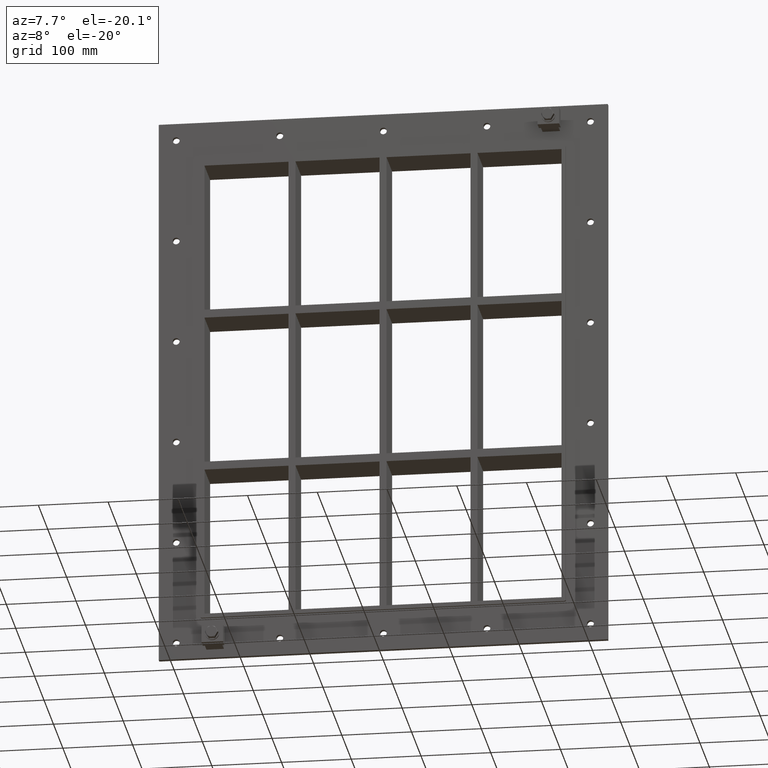
[diagram: clean part render]
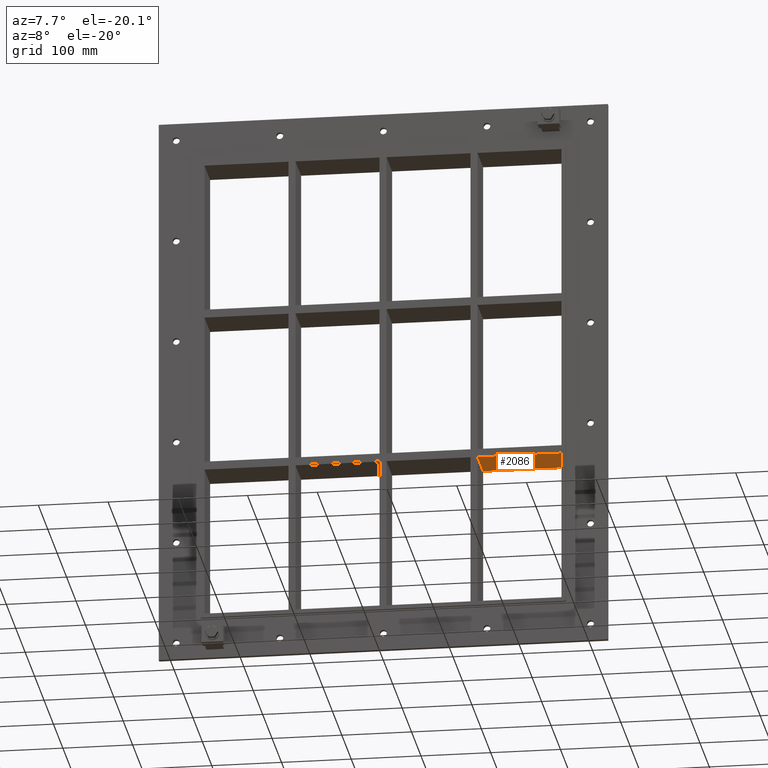
[diagram: same view with one face highlighted and labeled with its STEP entity id]
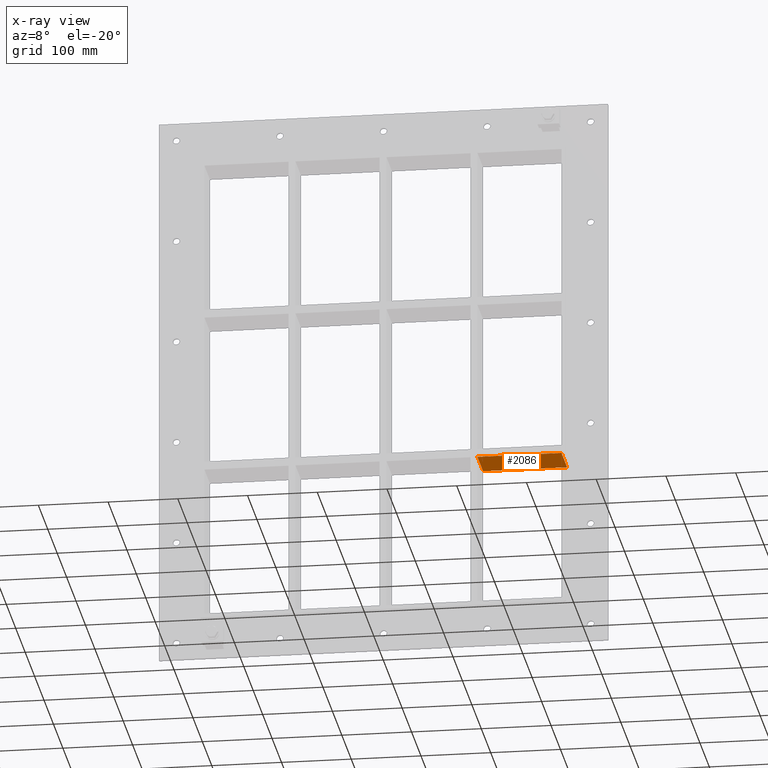
[diagram: x-ray of the same camera — body ghosted, the highlighted face saturated]
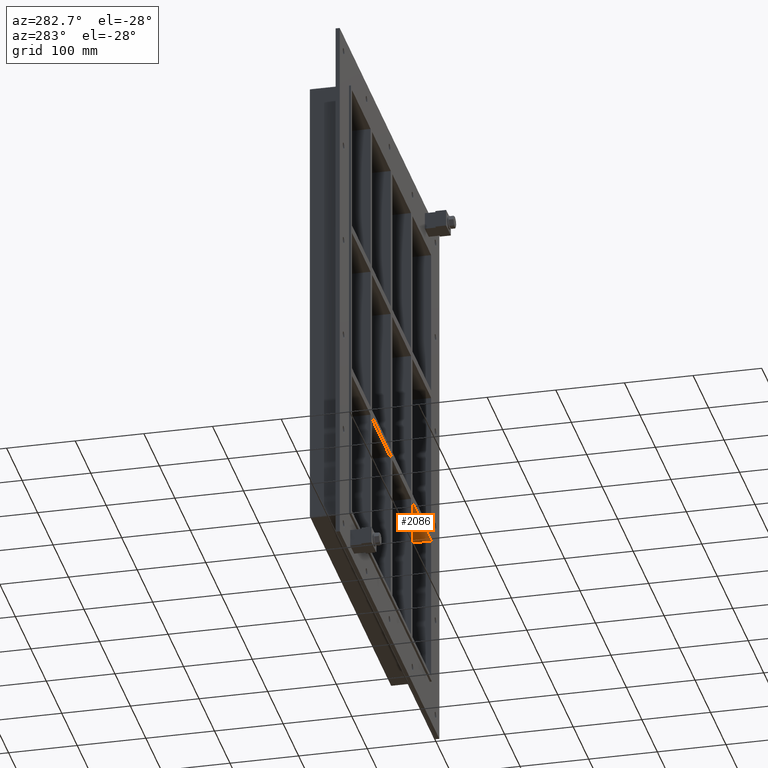
[diagram: same view with one face highlighted and labeled with its STEP entity id]
A machine part, auxiliary view. The second image highlights one B-rep face of the part: STEP entity #2086.
The next image is the same camera in x-ray: the body ghosted, the highlighted face saturated — about 0% of this face is hidden behind the body in this view.
A second angle (auxiliary view) of the same face is appended — the face is thin or edge-on in the first view.
In plain terms, the highlighted planar face has unit normal (0, 0, -1).
Its self-contained STEP definition (entity closure, byte-faithful):
#1501=CARTESIAN_POINT('',(256.00000000000369,57.0,-121.000000000011));
#1502=VERTEX_POINT('',#1501);
#1509=CARTESIAN_POINT('',(135.50000000000728,57.0,-121.00000000001117));
#1510=VERTEX_POINT('',#1509);
#1511=CARTESIAN_POINT('',(256.00000000000364,57.0,-121.000000000011));
#1512=DIRECTION('',(-1.0,0.0,0.0));
#1513=VECTOR('',#1512,120.49999999999636);
#1514=LINE('',#1511,#1513);
#1515=EDGE_CURVE('',#1502,#1510,#1514,.T.);
#1610=CARTESIAN_POINT('',(135.50000000000728,-3.0,-121.00000000001117));
#1611=VERTEX_POINT('',#1610);
#1612=CARTESIAN_POINT('',(135.50000000000728,-3.0,-121.00000000001116));
#1613=DIRECTION('',(0.0,1.0,0.0));
#1614=VECTOR('',#1613,60.0);
#1615=LINE('',#1612,#1614);
#1616=EDGE_CURVE('',#1611,#1510,#1615,.T.);
#2018=CARTESIAN_POINT('',(256.00000000000364,-3.0,-121.000000000011));
#2019=VERTEX_POINT('',#2018);
#2020=CARTESIAN_POINT('',(256.00000000000364,-3.0,-121.000000000011));
#2021=DIRECTION('',(-1.0,0.0,0.0));
#2022=VECTOR('',#2021,120.49999999999636);
#2023=LINE('',#2020,#2022);
#2024=EDGE_CURVE('',#2019,#1611,#2023,.T.);
#2070=CARTESIAN_POINT('',(256.00000000000364,-3.0,-121.000000000011));
#2071=DIRECTION('',(0.0,0.0,-1.0));
#2072=DIRECTION('',(-1.0,0.0,0.0));
#2073=AXIS2_PLACEMENT_3D('',#2070,#2071,#2072);
#2074=PLANE('',#2073);
#2075=ORIENTED_EDGE('',*,*,#1616,.T.);
#2076=ORIENTED_EDGE('',*,*,#1515,.F.);
#2077=CARTESIAN_POINT('',(256.0,-3.0,-121.00000000001101));
#2078=DIRECTION('',(0.0,1.0,0.0));
#2079=VECTOR('',#2078,60.000000000000007);
#2080=LINE('',#2077,#2079);
#2081=EDGE_CURVE('',#2019,#1502,#2080,.T.);
#2082=ORIENTED_EDGE('',*,*,#2081,.F.);
#2083=ORIENTED_EDGE('',*,*,#2024,.T.);
#2084=EDGE_LOOP('',(#2075,#2076,#2082,#2083));
#2085=FACE_OUTER_BOUND('',#2084,.T.);
#2086=ADVANCED_FACE('',(#2085),#2074,.T.);